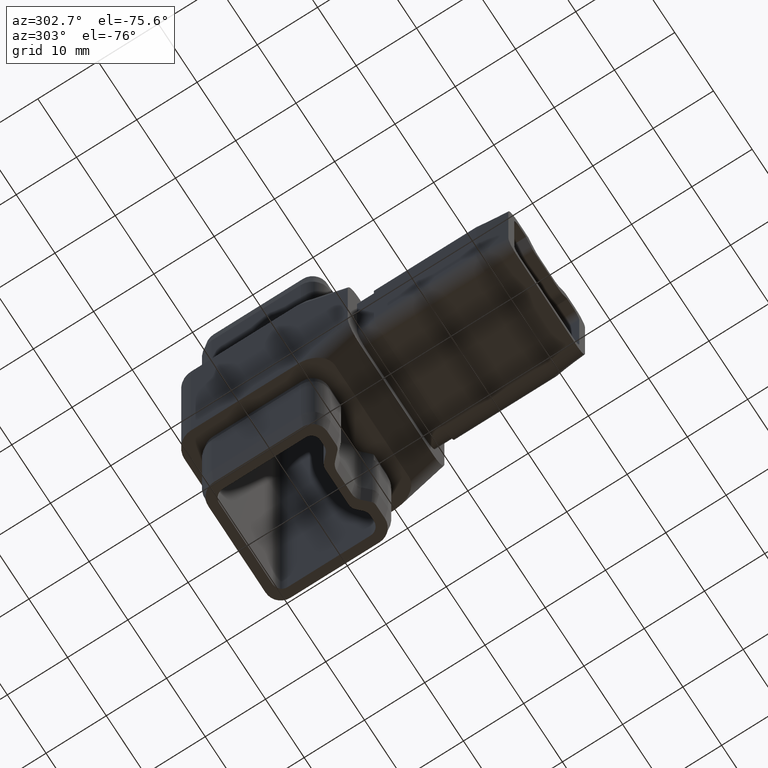
[diagram: clean part render]
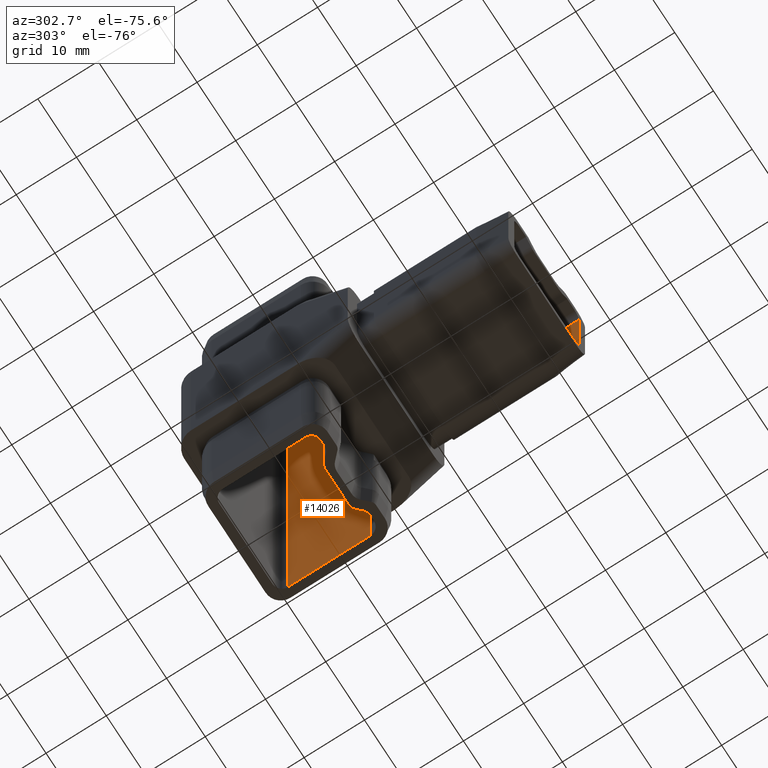
[diagram: same view with one face highlighted and labeled with its STEP entity id]
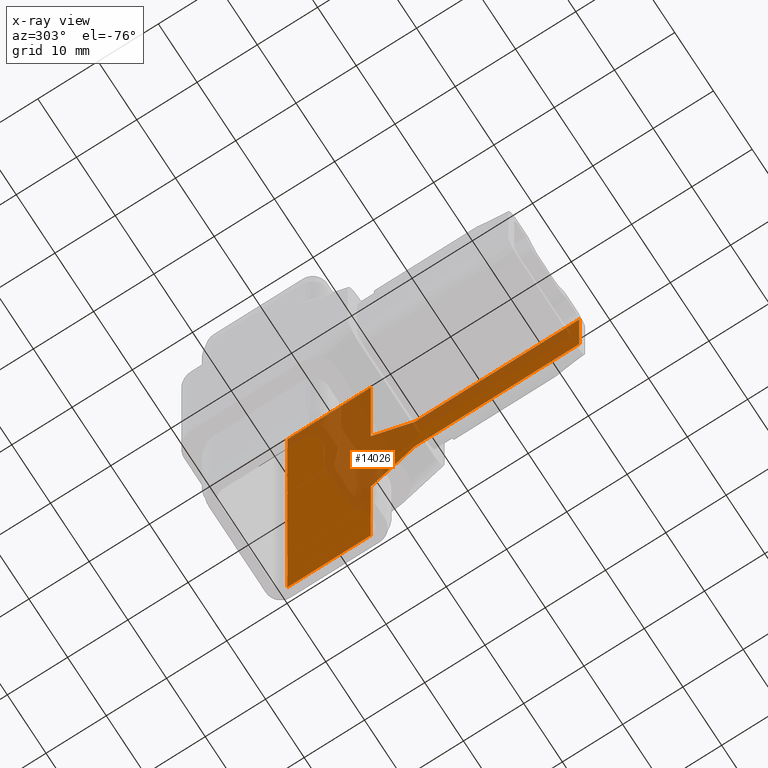
[diagram: x-ray of the same camera — body ghosted, the highlighted face saturated]
A machine part, auxiliary view. The second image highlights one B-rep face of the part: STEP entity #14026.
The next image is the same camera in x-ray: the body ghosted, the highlighted face saturated — about 45% of this face is hidden behind the body in this view.
In plain terms, the highlighted planar face has unit normal (-1, -0, 0).
Its self-contained STEP definition (entity closure, byte-faithful):
#31 = LINE ( 'NONE', #17359, #3351 ) ;
#49 = CARTESIAN_POINT ( 'NONE',  ( 8.400000000000000400, -12.18040405071066200, 6.899999999999986100 ) ) ;
#55 = EDGE_CURVE ( 'NONE', #2459, #11475, #2528, .T. ) ;
#236 = CARTESIAN_POINT ( 'NONE',  ( 8.399999999999998600, 8.900000000000007500, 11.50000000000000400 ) ) ;
#454 = VERTEX_POINT ( 'NONE', #1254 ) ;
#1129 = ORIENTED_EDGE ( 'NONE', *, *, #17615, .T. ) ;
#1227 = EDGE_CURVE ( 'NONE', #15559, #4066, #8203, .T. ) ;
#1254 = CARTESIAN_POINT ( 'NONE',  ( 8.400000000000000400, 8.900000000000007500, 41.50000000000000000 ) ) ;
#1493 = LINE ( 'NONE', #8297, #18805 ) ;
#1647 = VECTOR ( 'NONE', #13392, 1000.000000000000000 ) ;
#1689 = CARTESIAN_POINT ( 'NONE',  ( 8.400000000000000400, -4.899999999999989700, 41.50000000000000000 ) ) ;
#2047 = VERTEX_POINT ( 'NONE', #11221 ) ;
#2459 = VERTEX_POINT ( 'NONE', #11445 ) ;
#2528 = LINE ( 'NONE', #12654, #11756 ) ;
#2579 = ORIENTED_EDGE ( 'NONE', *, *, #8250, .T. ) ;
#2799 = DIRECTION ( 'NONE',  ( -1.196361017915039500E-016, 1.000000000000000000, 4.440892098500625700E-016 ) ) ;
#2816 = CARTESIAN_POINT ( 'NONE',  ( 8.400000000000000400, -4.899999999999987900, -12.68040405071066700 ) ) ;
#3275 = LINE ( 'NONE', #17526, #11543 ) ;
#3351 = VECTOR ( 'NONE', #17415, 1000.000000000000000 ) ;
#3374 = EDGE_CURVE ( 'NONE', #6502, #3614, #5196, .T. ) ;
#3614 = VERTEX_POINT ( 'NONE', #49 ) ;
#3794 = VERTEX_POINT ( 'NONE', #6614 ) ;
#3880 = DIRECTION ( 'NONE',  ( 1.196361017915039500E-016, -1.000000000000000000, -4.440892098500625200E-016 ) ) ;
#3929 = CARTESIAN_POINT ( 'NONE',  ( 8.400000000000000400, -4.899999999999987900, -41.50000000000000000 ) ) ;
#4066 = VERTEX_POINT ( 'NONE', #1689 ) ;
#4266 = CARTESIAN_POINT ( 'NONE',  ( 8.399999999999998600, 8.900000000000007500, -16.50000000000000000 ) ) ;
#4270 = FACE_OUTER_BOUND ( 'NONE', #10739, .T. ) ;
#4369 = CARTESIAN_POINT ( 'NONE',  ( 8.400000000000000400, -10.68040405071066500, 6.899999999999990600 ) ) ;
#4974 = EDGE_CURVE ( 'NONE', #11475, #10903, #17744, .T. ) ;
#5196 = LINE ( 'NONE', #4369, #8961 ) ;
#5469 = LINE ( 'NONE', #12243, #11623 ) ;
#5485 = CARTESIAN_POINT ( 'NONE',  ( 8.399999999999998600, 14.50000000000000500, 16.50000000000000000 ) ) ;
#5975 = DIRECTION ( 'NONE',  ( 1.032573497605242800E-016, -1.000000000000000000, 0.0000000000000000000 ) ) ;
#6071 = EDGE_CURVE ( 'NONE', #12445, #3794, #6908, .T. ) ;
#6502 = VERTEX_POINT ( 'NONE', #10022 ) ;
#6539 = CARTESIAN_POINT ( 'NONE',  ( 8.400000000000000400, -4.899999999999987000, -14.18040405071066500 ) ) ;
#6614 = CARTESIAN_POINT ( 'NONE',  ( 8.399999999999998600, 8.900000000000007500, -11.50000000000000400 ) ) ;
#6908 = LINE ( 'NONE', #4266, #11607 ) ;
#7014 = DIRECTION ( 'NONE',  ( -8.459549885149636600E-017, 0.7071067811865463500, 0.7071067811865487900 ) ) ;
#7031 = ORIENTED_EDGE ( 'NONE', *, *, #3374, .T. ) ;
#7198 = LINE ( 'NONE', #8856, #15201 ) ;
#7553 = LINE ( 'NONE', #236, #19602 ) ;
#7561 = CARTESIAN_POINT ( 'NONE',  ( 8.400000000000000400, -39.49999999999999300, 1.999999999999986200 ) ) ;
#7594 = ORIENTED_EDGE ( 'NONE', *, *, #11230, .T. ) ;
#7923 = EDGE_CURVE ( 'NONE', #10123, #6502, #11164, .T. ) ;
#7977 = ORIENTED_EDGE ( 'NONE', *, *, #19044, .F. ) ;
#8203 = LINE ( 'NONE', #18115, #8644 ) ;
#8250 = EDGE_CURVE ( 'NONE', #3794, #2459, #31, .T. ) ;
#8297 = CARTESIAN_POINT ( 'NONE',  ( 8.400000000000003900, -39.49999999999999300, -6.900000000000017200 ) ) ;
#8492 = ORIENTED_EDGE ( 'NONE', *, *, #18031, .T. ) ;
#8528 = DIRECTION ( 'NONE',  ( 1.196361017915039500E-016, -1.000000000000000000, 0.0000000000000000000 ) ) ;
#8644 = VECTOR ( 'NONE', #19654, 1000.000000000000000 ) ;
#8856 = CARTESIAN_POINT ( 'NONE',  ( 8.400000000000000400, -10.54020202535529000, -8.540202025355380800 ) ) ;
#8961 = VECTOR ( 'NONE', #2799, 1000.000000000000000 ) ;
#9159 = CARTESIAN_POINT ( 'NONE',  ( 8.400000000000000400, 8.900000000000007500, 11.50000000000000400 ) ) ;
#9403 = ORIENTED_EDGE ( 'NONE', *, *, #6071, .T. ) ;
#9501 = DIRECTION ( 'NONE',  ( 0.0000000000000000000, 0.0000000000000000000, -1.000000000000000000 ) ) ;
#10022 = CARTESIAN_POINT ( 'NONE',  ( 8.400000000000000400, -39.49999999999999300, 6.899999999999977300 ) ) ;
#10123 = VERTEX_POINT ( 'NONE', #19074 ) ;
#10633 = EDGE_CURVE ( 'NONE', #3614, #15559, #3275, .T. ) ;
#10739 = EDGE_LOOP ( 'NONE', ( #8492, #1129, #16765, #7031, #14267, #13982, #7977, #7594, #9403, #2579, #13558, #16516 ) ) ;
#10903 = VERTEX_POINT ( 'NONE', #6539 ) ;
#11164 = LINE ( 'NONE', #7561, #14450 ) ;
#11221 = CARTESIAN_POINT ( 'NONE',  ( 8.400000000000000400, -12.18040405071067100, -6.900000000000004800 ) ) ;
#11230 = EDGE_CURVE ( 'NONE', #454, #12445, #7553, .T. ) ;
#11445 = CARTESIAN_POINT ( 'NONE',  ( 8.400000000000000400, 8.900000000000007500, -41.50000000000000000 ) ) ;
#11475 = VERTEX_POINT ( 'NONE', #3929 ) ;
#11543 = VECTOR ( 'NONE', #7014, 1000.000000000000000 ) ;
#11607 = VECTOR ( 'NONE', #16590, 1000.000000000000000 ) ;
#11623 = VECTOR ( 'NONE', #5975, 1000.000000000000000 ) ;
#11756 = VECTOR ( 'NONE', #12791, 1000.000000000000000 ) ;
#11946 = DIRECTION ( 'NONE',  ( 8.459549885149666200E-017, -0.7071067811865487900, 0.7071067811865463500 ) ) ;
#12243 = CARTESIAN_POINT ( 'NONE',  ( 8.400000000000000400, 8.673617379884041400E-016, 41.50000000000000000 ) ) ;
#12445 = VERTEX_POINT ( 'NONE', #9159 ) ;
#12654 = CARTESIAN_POINT ( 'NONE',  ( 8.400000000000000400, 8.673617379884041400E-016, -41.50000000000000000 ) ) ;
#12791 = DIRECTION ( 'NONE',  ( 1.032573497605242800E-016, -1.000000000000000000, 0.0000000000000000000 ) ) ;
#13011 = DIRECTION ( 'NONE',  ( -1.000000000000000000, -1.196361017915039500E-016, 0.0000000000000000000 ) ) ;
#13392 = DIRECTION ( 'NONE',  ( 0.0000000000000000000, 0.0000000000000000000, 1.000000000000000000 ) ) ;
#13558 = ORIENTED_EDGE ( 'NONE', *, *, #55, .T. ) ;
#13982 = ORIENTED_EDGE ( 'NONE', *, *, #1227, .T. ) ;
#14026 = ADVANCED_FACE ( 'NONE', ( #4270 ), #17472, .T. ) ;
#14267 = ORIENTED_EDGE ( 'NONE', *, *, #10633, .T. ) ;
#14450 = VECTOR ( 'NONE', #14837, 1000.000000000000000 ) ;
#14837 = DIRECTION ( 'NONE',  ( 1.032573497605242800E-016, -2.220446049250312600E-016, 1.000000000000000000 ) ) ;
#15201 = VECTOR ( 'NONE', #11946, 1000.000000000000000 ) ;
#15559 = VERTEX_POINT ( 'NONE', #19508 ) ;
#16065 = AXIS2_PLACEMENT_3D ( 'NONE', #5485, #13011, #8528 ) ;
#16516 = ORIENTED_EDGE ( 'NONE', *, *, #4974, .T. ) ;
#16590 = DIRECTION ( 'NONE',  ( 0.0000000000000000000, 0.0000000000000000000, -1.000000000000000000 ) ) ;
#16765 = ORIENTED_EDGE ( 'NONE', *, *, #7923, .T. ) ;
#17359 = CARTESIAN_POINT ( 'NONE',  ( 8.399999999999998600, 8.900000000000007500, -41.50000000000000000 ) ) ;
#17415 = DIRECTION ( 'NONE',  ( -0.0000000000000000000, -0.0000000000000000000, -1.000000000000000000 ) ) ;
#17472 = PLANE ( 'NONE',  #16065 ) ;
#17526 = CARTESIAN_POINT ( 'NONE',  ( 8.400000000000000400, 5.959797974644633500, 25.04020202535534500 ) ) ;
#17615 = EDGE_CURVE ( 'NONE', #2047, #10123, #1493, .T. ) ;
#17744 = LINE ( 'NONE', #2816, #1647 ) ;
#18031 = EDGE_CURVE ( 'NONE', #10903, #2047, #7198, .T. ) ;
#18115 = CARTESIAN_POINT ( 'NONE',  ( 8.400000000000000400, -4.899999999999987900, 16.50000000000000000 ) ) ;
#18805 = VECTOR ( 'NONE', #3880, 1000.000000000000000 ) ;
#19044 = EDGE_CURVE ( 'NONE', #454, #4066, #5469, .T. ) ;
#19074 = CARTESIAN_POINT ( 'NONE',  ( 8.400000000000000400, -39.49999999999999300, -6.900000000000017200 ) ) ;
#19508 = CARTESIAN_POINT ( 'NONE',  ( 8.400000000000000400, -4.899999999999989700, 14.18040405071068500 ) ) ;
#19602 = VECTOR ( 'NONE', #9501, 1000.000000000000000 ) ;
#19654 = DIRECTION ( 'NONE',  ( -0.0000000000000000000, -0.0000000000000000000, 1.000000000000000000 ) ) ;